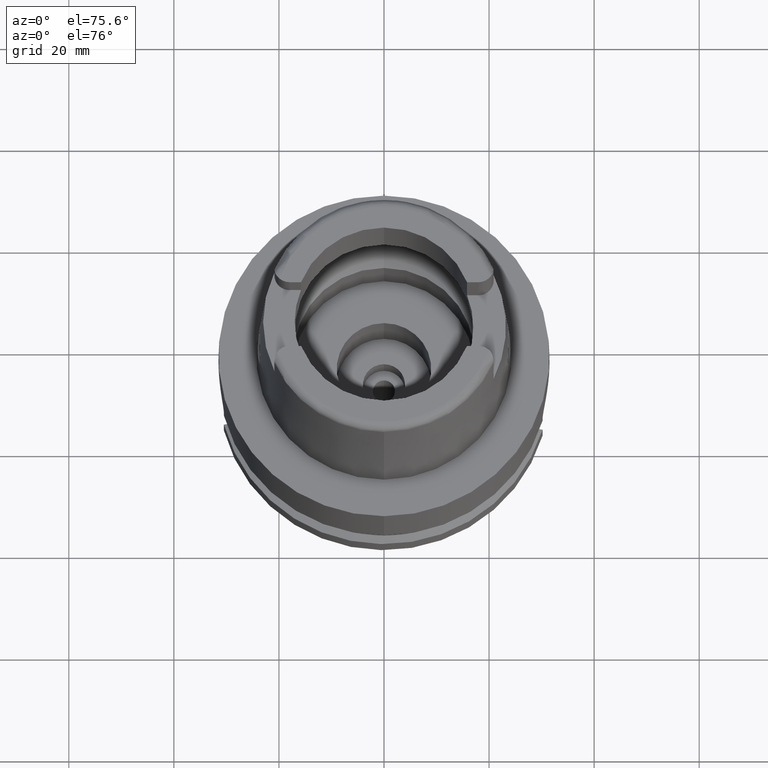
[diagram: clean part render]
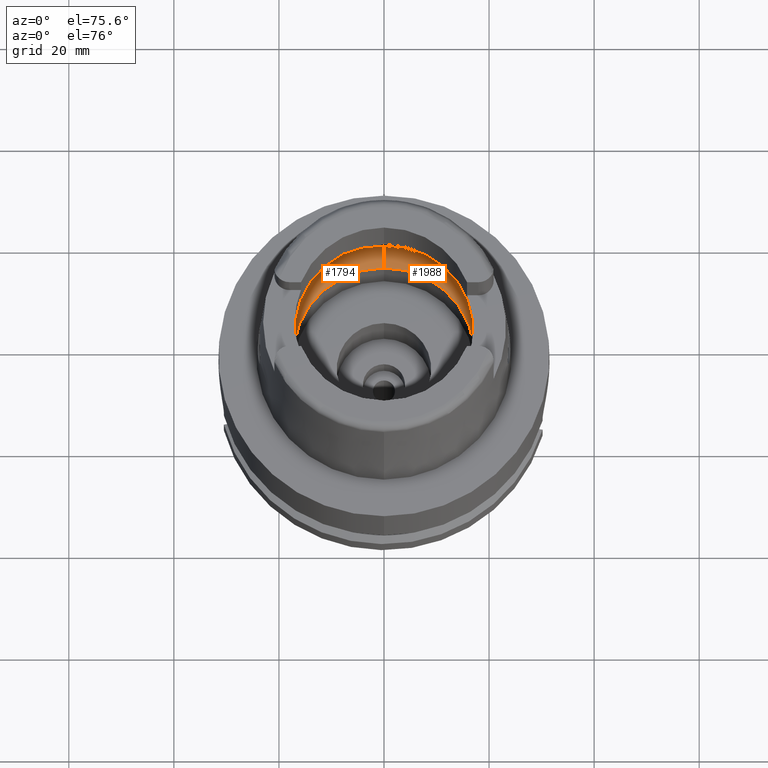
[diagram: same view with one multi-face feature highlighted, each face labeled with its STEP entity id]
A machine part, auxiliary view. The highlighted faces form ONE feature: a constant-radius fillet chain: 2 tangent blend faces with common blend radius 8 mm. The faces share edges in the B-rep.
Their STEP definitions:
[1] entity #1794 (Torus):
#205 = CARTESIAN_POINT ( 'NONE',  ( -19.93856738032333453, 0.8183990517498546113, 5.338642722792990014 ) ) ;
#215 = CARTESIAN_POINT ( 'NONE',  ( -19.90056784349247820, -1.871074272730828048, 5.748194928871746434 ) ) ;
#271 = CARTESIAN_POINT ( 'NONE',  ( -19.92467615132159864, -1.358120919786871328, 5.504564686247708671 ) ) ;
#588 = EDGE_CURVE ( 'NONE', #4641, #673, #3503, .T. ) ;
#622 = EDGE_CURVE ( 'NONE', #1286, #673, #2600, .T. ) ;
#633 = CARTESIAN_POINT ( 'NONE',  ( 0.0000000000000000000, 12.00000000000000000, 6.186348233825000875 ) ) ;
#660 = CARTESIAN_POINT ( 'NONE',  ( -19.92591906827002646, 1.321585501804108498, 5.490587994736724653 ) ) ;
#673 = VERTEX_POINT ( 'NONE', #1459 ) ;
#675 = CARTESIAN_POINT ( 'NONE',  ( -19.91819960699401193, -1.528790138807751164, 5.574827418276589341 ) ) ;
#679 = EDGE_CURVE ( 'NONE', #3279, #1286, #4270, .T. ) ;
#763 = ORIENTED_EDGE ( 'NONE', *, *, #622, .F. ) ;
#968 = EDGE_LOOP ( 'NONE', ( #1443, #3018, #1840, #1868, #763, #3403, #3286 ) ) ;
#1063 = CARTESIAN_POINT ( 'NONE',  ( -19.92607492902601862, 1.316891584251023373, 5.488826718528810211 ) ) ;
#1137 = CIRCLE ( 'NONE', #2579, 7.999999999999992895 ) ;
#1162 = AXIS2_PLACEMENT_3D ( 'NONE', #633, #3204, #1517 ) ;
#1257 = CARTESIAN_POINT ( 'NONE',  ( 0.0000000000000000000, 0.0000000000000000000, 6.186348233825000875 ) ) ;
#1280 = DIRECTION ( 'NONE',  ( 0.0000000000000000000, 0.0000000000000000000, -1.000000000000000000 ) ) ;
#1286 = VERTEX_POINT ( 'NONE', #1570 ) ;
#1420 = AXIS2_PLACEMENT_3D ( 'NONE', #4631, #4545, #3281 ) ;
#1443 = ORIENTED_EDGE ( 'NONE', *, *, #2815, .F. ) ;
#1459 = CARTESIAN_POINT ( 'NONE',  ( 0.0000000000000000000, 20.00000000000000000, 6.186348233825000875 ) ) ;
#1514 = AXIS2_PLACEMENT_3D ( 'NONE', #2761, #4498, #3615 ) ;
#1517 = DIRECTION ( 'NONE',  ( 0.0000000000000000000, 0.6562500000000006661, -0.7545435292281016393 ) ) ;
#1570 = CARTESIAN_POINT ( 'NONE',  ( -19.84575864665999845, 2.479085262489999941, 6.186348233825000875 ) ) ;
#1606 = VERTEX_POINT ( 'NONE', #4576 ) ;
#1620 = DIRECTION ( 'NONE',  ( 0.0000000000000000000, 1.000000000000000000, 0.0000000000000000000 ) ) ;
#1644 = B_SPLINE_CURVE_WITH_KNOTS ( 'NONE', 3,
 ( #4539, #3276, #4624, #215, #1927, #3653, #675, #5419, #2403, #271, #1984, #3706, #5001, #4572, #2438 ),
 .UNSPECIFIED., .F., .F.,
 ( 4, 2, 2, 1, 1, 1, 2, 2, 4 ),
 ( 0.0000000000000000000, 0.2500000000000051070, 0.3750000000000077716, 0.4375000000000091038, 0.4687500000000098255, 0.4843750000000101030, 0.4921875000000099920, 0.5000000000000098810, 1.000000000000000000 ),
 .UNSPECIFIED. ) ;
#1675 = FACE_OUTER_BOUND ( 'NONE', #968, .T. ) ;
#1794 = ADVANCED_FACE ( 'NONE', ( #1675 ), #4564, .F. ) ;
#1840 = ORIENTED_EDGE ( 'NONE', *, *, #2245, .F. ) ;
#1868 = ORIENTED_EDGE ( 'NONE', *, *, #588, .T. ) ;
#1888 = CARTESIAN_POINT ( 'NONE',  ( 0.0000000000000000000, 17.25000000000000000, 0.1500000000000999700 ) ) ;
#1912 = CARTESIAN_POINT ( 'NONE',  ( -19.93655272268687284, 0.9259470818481616572, 5.364515645286472179 ) ) ;
#1927 = CARTESIAN_POINT ( 'NONE',  ( -19.90654447560747542, -1.770008974173177263, 5.691881888190377659 ) ) ;
#1934 = CARTESIAN_POINT ( 'NONE',  ( -19.94501428475999916, 0.0000000000000000000, 5.250000000000000000 ) ) ;
#1937 = CARTESIAN_POINT ( 'NONE',  ( -19.90996177496825936, 1.795767083473500003, 5.670284047757667700 ) ) ;
#1959 = AXIS2_PLACEMENT_3D ( 'NONE', #1257, #4245, #1620 ) ;
#1984 = CARTESIAN_POINT ( 'NONE',  ( -19.92517785718085577, -1.343613127942956842, 5.498962406970089312 ) ) ;
#2141 = CIRCLE ( 'NONE', #1420, 17.25000000000000000 ) ;
#2212 = VERTEX_POINT ( 'NONE', #3203 ) ;
#2245 = EDGE_CURVE ( 'NONE', #4641, #2669, #2141, .T. ) ;
#2335 = CARTESIAN_POINT ( 'NONE',  ( -19.94501428475999916, 0.0000000000000000000, 5.250000000000000000 ) ) ;
#2403 = CARTESIAN_POINT ( 'NONE',  ( -19.92391559123418787, -1.379822842001579009, 5.513022806674898746 ) ) ;
#2438 = CARTESIAN_POINT ( 'NONE',  ( -19.94501428475999916, 0.0000000000000000000, 5.250000000000000000 ) ) ;
#2485 = DIRECTION ( 'NONE',  ( 0.0000000000000000000, -1.000000000000000000, 0.0000000000000000000 ) ) ;
#2579 = AXIS2_PLACEMENT_3D ( 'NONE', #5154, #3966, #4885 ) ;
#2600 = CIRCLE ( 'NONE', #1514, 20.00000000000001421 ) ;
#2669 = VERTEX_POINT ( 'NONE', #4018 ) ;
#2761 = CARTESIAN_POINT ( 'NONE',  ( 0.0000000000000000000, 0.0000000000000000000, 6.186348233825000875 ) ) ;
#2815 = EDGE_CURVE ( 'NONE', #1606, #2212, #3046, .T. ) ;
#2918 = CARTESIAN_POINT ( 'NONE',  ( -19.93292633894125032, 1.081457122334412047, 5.408919853931180910 ) ) ;
#3018 = ORIENTED_EDGE ( 'NONE', *, *, #4974, .F. ) ;
#3046 = CIRCLE ( 'NONE', #5121, 20.00000000000000000 ) ;
#3156 = CARTESIAN_POINT ( 'NONE',  ( -19.92840595086943978, 1.244192535819847123, 5.462252019519766577 ) ) ;
#3203 = CARTESIAN_POINT ( 'NONE',  ( -19.84575864665999845, -2.479085262491000030, 6.186348233825000875 ) ) ;
#3204 = DIRECTION ( 'NONE',  ( 1.000000000000000000, 0.0000000000000000000, 0.0000000000000000000 ) ) ;
#3276 = CARTESIAN_POINT ( 'NONE',  ( -19.86453968564131500, -2.328737885376345407, 6.053878405347992597 ) ) ;
#3279 = VERTEX_POINT ( 'NONE', #1934 ) ;
#3281 = DIRECTION ( 'NONE',  ( 0.0000000000000000000, 1.000000000000000000, 0.0000000000000000000 ) ) ;
#3286 = ORIENTED_EDGE ( 'NONE', *, *, #4081, .F. ) ;
#3403 = ORIENTED_EDGE ( 'NONE', *, *, #679, .F. ) ;
#3503 = CIRCLE ( 'NONE', #1162, 7.999999999999992895 ) ;
#3615 = DIRECTION ( 'NONE',  ( -0.9922879323327794543, 0.1239542631244973381, 0.0000000000000000000 ) ) ;
#3653 = CARTESIAN_POINT ( 'NONE',  ( -19.91448525756728927, -1.610510976265786987, 5.612925495665686881 ) ) ;
#3665 = CARTESIAN_POINT ( 'NONE',  ( -19.93096204774570523, 1.157762075076217867, 5.432521242667223582 ) ) ;
#3706 = CARTESIAN_POINT ( 'NONE',  ( -19.92547007504345302, -1.335031240339097369, 5.495683724100088874 ) ) ;
#3761 = CARTESIAN_POINT ( 'NONE',  ( -19.92647156474819425, 1.304855687908918371, 5.484336066840278079 ) ) ;
#3794 = CARTESIAN_POINT ( 'NONE',  ( -19.84575864665999845, 2.479085262489999941, 6.186348233825000875 ) ) ;
#3966 = DIRECTION ( 'NONE',  ( -1.000000000000000000, 0.0000000000000000000, 0.0000000000000000000 ) ) ;
#4018 = CARTESIAN_POINT ( 'NONE',  ( 0.0000000000000000000, -17.25000000000000000, 0.1500000000000999700 ) ) ;
#4063 = CARTESIAN_POINT ( 'NONE',  ( -19.94501428476000271, 0.2479290550754577327, 5.249999999999999112 ) ) ;
#4081 = EDGE_CURVE ( 'NONE', #2212, #3279, #1644, .T. ) ;
#4245 = DIRECTION ( 'NONE',  ( 0.0000000000000000000, 0.0000000000000000000, 1.000000000000000000 ) ) ;
#4270 = B_SPLINE_CURVE_WITH_KNOTS ( 'NONE', 3,
 ( #2335, #4063, #4525, #205, #1912, #2918, #3665, #3156, #4928, #3761, #1063, #660, #1937, #5476, #3794 ),
 .UNSPECIFIED., .F., .F.,
 ( 4, 2, 2, 1, 1, 1, 2, 2, 4 ),
 ( 0.0000000000000000000, 0.2500000000000002220, 0.3750000000000004441, 0.4375000000000003331, 0.4687500000000000555, 0.4843750000000001110, 0.4921875000000000555, 0.5000000000000000000, 1.000000000000000000 ),
 .UNSPECIFIED. ) ;
#4498 = DIRECTION ( 'NONE',  ( 0.0000000000000000000, 0.0000000000000000000, -1.000000000000000000 ) ) ;
#4525 = CARTESIAN_POINT ( 'NONE',  ( -19.94340255865082767, 0.4848947565524748260, 5.274596189388979894 ) ) ;
#4539 = CARTESIAN_POINT ( 'NONE',  ( -19.84575864665999845, -2.479085262491000030, 6.186348233825000875 ) ) ;
#4545 = DIRECTION ( 'NONE',  ( 0.0000000000000000000, 0.0000000000000000000, 1.000000000000000000 ) ) ;
#4564 = TOROIDAL_SURFACE ( 'NONE', #1959, 12.00000000000000000, 8.000000000000000000 ) ;
#4572 = CARTESIAN_POINT ( 'NONE',  ( -19.94501428475999560, -0.4960423020627297008, 5.249999999999995559 ) ) ;
#4576 = CARTESIAN_POINT ( 'NONE',  ( 0.0000000000000000000, -20.00000000000000000, 6.186348233825000875 ) ) ;
#4624 = CARTESIAN_POINT ( 'NONE',  ( -19.88058961472209774, -2.158414018199903417, 5.925204145833316893 ) ) ;
#4631 = CARTESIAN_POINT ( 'NONE',  ( 0.0000000000000000000, 0.0000000000000000000, 0.1500000000000999700 ) ) ;
#4641 = VERTEX_POINT ( 'NONE', #1888 ) ;
#4885 = DIRECTION ( 'NONE',  ( 0.0000000000000000000, -0.6562500000000006661, -0.7545435292281016393 ) ) ;
#4928 = CARTESIAN_POINT ( 'NONE',  ( -19.92706179647761999, 1.286754988679454703, 5.477635449958629721 ) ) ;
#4974 = EDGE_CURVE ( 'NONE', #2669, #1606, #1137, .T. ) ;
#5001 = CARTESIAN_POINT ( 'NONE',  ( -19.93856671042052398, -0.9459665778997381480, 5.348222674928019060 ) ) ;
#5121 = AXIS2_PLACEMENT_3D ( 'NONE', #5522, #1280, #2485 ) ;
#5154 = CARTESIAN_POINT ( 'NONE',  ( 0.0000000000000000000, -12.00000000000000000, 6.186348233825000875 ) ) ;
#5419 = CARTESIAN_POINT ( 'NONE',  ( -19.92208494194046509, -1.430041077684033990, 5.533135808937241329 ) ) ;
#5476 = CARTESIAN_POINT ( 'NONE',  ( -19.88332346670492257, 2.178368557158611996, 5.921389235935947681 ) ) ;
#5522 = CARTESIAN_POINT ( 'NONE',  ( 0.0000000000000000000, 0.0000000000000000000, 6.186348233825000875 ) ) ;
[2] entity #1988 (Torus):
#22 = CARTESIAN_POINT ( 'NONE',  ( 19.92467869001661995, 1.357961439187409525, 5.504502721927527986 ) ) ;
#54 = CARTESIAN_POINT ( 'NONE',  ( 19.94501428475999916, 0.0000000000000000000, 5.250000000000000000 ) ) ;
#170 = B_SPLINE_CURVE_WITH_KNOTS ( 'NONE', 3,
 ( #2067, #5556, #5192, #4770, #5108, #4272, #1672, #1647, #2940, #22, #1307, #3362, #1336, #5500, #4331 ),
 .UNSPECIFIED., .F., .F.,
 ( 4, 2, 2, 1, 1, 1, 2, 2, 4 ),
 ( 0.0000000000000000000, 0.2500000000000033862, 0.3750000000000049405, 0.4375000000000056621, 0.4687500000000057176, 0.4843750000000056621, 0.4921875000000054956, 0.5000000000000053291, 1.000000000000000000 ),
 .UNSPECIFIED. ) ;
#260 = AXIS2_PLACEMENT_3D ( 'NONE', #5204, #3035, #3008 ) ;
#313 = EDGE_LOOP ( 'NONE', ( #4241, #3674, #3777, #5194, #879, #4046, #2523 ) ) ;
#464 = CARTESIAN_POINT ( 'NONE',  ( 19.92840411800285594, -1.244366584479167814, 5.462313247185328180 ) ) ;
#513 = AXIS2_PLACEMENT_3D ( 'NONE', #4894, #4869, #921 ) ;
#588 = EDGE_CURVE ( 'NONE', #4641, #673, #3503, .T. ) ;
#633 = CARTESIAN_POINT ( 'NONE',  ( 0.0000000000000000000, 12.00000000000000000, 6.186348233825000875 ) ) ;
#673 = VERTEX_POINT ( 'NONE', #1459 ) ;
#779 = CIRCLE ( 'NONE', #513, 20.00000000000001421 ) ;
#854 = CARTESIAN_POINT ( 'NONE',  ( 19.93292500493674524, -1.081634238850528451, 5.408973163817647034 ) ) ;
#879 = ORIENTED_EDGE ( 'NONE', *, *, #4974, .T. ) ;
#912 = CARTESIAN_POINT ( 'NONE',  ( 19.93856666885426776, -0.8185636124059638696, 5.338679045133562617 ) ) ;
#921 = DIRECTION ( 'NONE',  ( 0.9922879323327794543, -0.1239542631244973381, 0.0000000000000000000 ) ) ;
#1137 = CIRCLE ( 'NONE', #2579, 7.999999999999992895 ) ;
#1162 = AXIS2_PLACEMENT_3D ( 'NONE', #633, #3204, #1517 ) ;
#1307 = CARTESIAN_POINT ( 'NONE',  ( 19.92518041982365418, 1.343450277255565872, 5.498899909475031045 ) ) ;
#1336 = CARTESIAN_POINT ( 'NONE',  ( 19.93856757259323231, 0.9457801821284733679, 5.348172806034195759 ) ) ;
#1389 = DIRECTION ( 'NONE',  ( 0.0000000000000000000, 0.0000000000000000000, -1.000000000000000000 ) ) ;
#1426 = CIRCLE ( 'NONE', #260, 17.25000000000000000 ) ;
#1431 = FACE_OUTER_BOUND ( 'NONE', #313, .T. ) ;
#1459 = CARTESIAN_POINT ( 'NONE',  ( 0.0000000000000000000, 20.00000000000000000, 6.186348233825000875 ) ) ;
#1517 = DIRECTION ( 'NONE',  ( 0.0000000000000000000, 0.6562500000000006661, -0.7545435292281016393 ) ) ;
#1606 = VERTEX_POINT ( 'NONE', #4576 ) ;
#1647 = CARTESIAN_POINT ( 'NONE',  ( 19.92208736014775994, 1.429898011590186924, 5.533076699460339754 ) ) ;
#1672 = CARTESIAN_POINT ( 'NONE',  ( 19.91820185418519884, 1.528668694906667236, 5.574772838317966439 ) ) ;
#1681 = CARTESIAN_POINT ( 'NONE',  ( 19.92607283891191727, -1.317061137141596561, 5.488890315884850324 ) ) ;
#1760 = CARTESIAN_POINT ( 'NONE',  ( 19.88332301270218849, -2.178372191595286722, 5.921392438207989883 ) ) ;
#1779 = AXIS2_PLACEMENT_3D ( 'NONE', #2677, #5236, #3581 ) ;
#1877 = VERTEX_POINT ( 'NONE', #4615 ) ;
#1888 = CARTESIAN_POINT ( 'NONE',  ( 0.0000000000000000000, 17.25000000000000000, 0.1500000000000999700 ) ) ;
#1988 = ADVANCED_FACE ( 'NONE', ( #1431 ), #5462, .F. ) ;
#2067 = CARTESIAN_POINT ( 'NONE',  ( 19.84575864665999845, 2.479085262491000030, 6.186348233825000875 ) ) ;
#2091 = EDGE_CURVE ( 'NONE', #3338, #1606, #779, .T. ) ;
#2099 = VERTEX_POINT ( 'NONE', #3554 ) ;
#2262 = CARTESIAN_POINT ( 'NONE',  ( 0.0000000000000000000, 0.0000000000000000000, 6.186348233825000875 ) ) ;
#2523 = ORIENTED_EDGE ( 'NONE', *, *, #3622, .F. ) ;
#2579 = AXIS2_PLACEMENT_3D ( 'NONE', #5154, #3966, #4885 ) ;
#2582 = CARTESIAN_POINT ( 'NONE',  ( 19.92591691872320681, -1.321755966737424792, 5.490652197696729075 ) ) ;
#2669 = VERTEX_POINT ( 'NONE', #4018 ) ;
#2677 = CARTESIAN_POINT ( 'NONE',  ( 0.0000000000000000000, 0.0000000000000000000, 6.186348233825000875 ) ) ;
#2940 = CARTESIAN_POINT ( 'NONE',  ( 19.92391809393505397, 1.379668374353000937, 5.512961660982391265 ) ) ;
#2977 = CARTESIAN_POINT ( 'NONE',  ( 19.92646951840612246, -1.305026090026948804, 5.484399317726082579 ) ) ;
#3008 = DIRECTION ( 'NONE',  ( 0.0000000000000000000, -1.000000000000000000, 0.0000000000000000000 ) ) ;
#3030 = CARTESIAN_POINT ( 'NONE',  ( 19.90996060949646207, -1.795819319521763990, 5.670329520825307057 ) ) ;
#3035 = DIRECTION ( 'NONE',  ( 0.0000000000000000000, 0.0000000000000000000, 1.000000000000000000 ) ) ;
#3059 = CARTESIAN_POINT ( 'NONE',  ( 19.84575864665999845, -2.479085262491000030, 6.186348233825000875 ) ) ;
#3096 = AXIS2_PLACEMENT_3D ( 'NONE', #2262, #1389, #4433 ) ;
#3161 = EDGE_CURVE ( 'NONE', #2669, #4641, #1426, .T. ) ;
#3204 = DIRECTION ( 'NONE',  ( 1.000000000000000000, 0.0000000000000000000, 0.0000000000000000000 ) ) ;
#3338 = VERTEX_POINT ( 'NONE', #5288 ) ;
#3362 = CARTESIAN_POINT ( 'NONE',  ( 19.92547268850448816, 1.334865291962832767, 5.495620507227335416 ) ) ;
#3369 = CARTESIAN_POINT ( 'NONE',  ( 19.94340238078356720, -0.4850176595367738930, 5.274610361541468784 ) ) ;
#3491 = CARTESIAN_POINT ( 'NONE',  ( 19.94501428476000271, -0.2480012822880987844, 5.249999999999999112 ) ) ;
#3503 = CIRCLE ( 'NONE', #1162, 7.999999999999992895 ) ;
#3554 = CARTESIAN_POINT ( 'NONE',  ( 19.94501428475999916, 0.0000000000000000000, 5.250000000000000000 ) ) ;
#3581 = DIRECTION ( 'NONE',  ( 0.0000000000000000000, 1.000000000000000000, 0.0000000000000000000 ) ) ;
#3622 = EDGE_CURVE ( 'NONE', #2099, #3338, #4484, .T. ) ;
#3674 = ORIENTED_EDGE ( 'NONE', *, *, #5551, .F. ) ;
#3777 = ORIENTED_EDGE ( 'NONE', *, *, #588, .F. ) ;
#3883 = CARTESIAN_POINT ( 'NONE',  ( 19.92705981527248937, -1.286926606873724177, 5.477698152406411225 ) ) ;
#3966 = DIRECTION ( 'NONE',  ( -1.000000000000000000, 0.0000000000000000000, 0.0000000000000000000 ) ) ;
#4018 = CARTESIAN_POINT ( 'NONE',  ( 0.0000000000000000000, -17.25000000000000000, 0.1500000000000999700 ) ) ;
#4046 = ORIENTED_EDGE ( 'NONE', *, *, #2091, .F. ) ;
#4156 = EDGE_CURVE ( 'NONE', #1877, #2099, #170, .T. ) ;
#4241 = ORIENTED_EDGE ( 'NONE', *, *, #4156, .F. ) ;
#4272 = CARTESIAN_POINT ( 'NONE',  ( 19.91448735469504427, 1.610406046188481932, 5.612875421313382240 ) ) ;
#4331 = CARTESIAN_POINT ( 'NONE',  ( 19.94501428475999916, 0.0000000000000000000, 5.250000000000000000 ) ) ;
#4433 = DIRECTION ( 'NONE',  ( 0.0000000000000000000, 1.000000000000000000, 0.0000000000000000000 ) ) ;
#4484 = B_SPLINE_CURVE_WITH_KNOTS ( 'NONE', 3,
 ( #54, #3491, #3369, #912, #5197, #854, #5532, #464, #3883, #2977, #1681, #2582, #3030, #1760, #3059 ),
 .UNSPECIFIED., .F., .F.,
 ( 4, 2, 2, 1, 1, 1, 2, 2, 4 ),
 ( 0.0000000000000000000, 0.2499999999999987788, 0.3749999999999982792, 0.4374999999999980571, 0.4687499999999978906, 0.4843749999999975020, 0.4921874999999975575, 0.4999999999999975575, 1.000000000000000000 ),
 .UNSPECIFIED. ) ;
#4576 = CARTESIAN_POINT ( 'NONE',  ( 0.0000000000000000000, -20.00000000000000000, 6.186348233825000875 ) ) ;
#4615 = CARTESIAN_POINT ( 'NONE',  ( 19.84575864665999845, 2.479085262491000030, 6.186348233825000875 ) ) ;
#4641 = VERTEX_POINT ( 'NONE', #1888 ) ;
#4770 = CARTESIAN_POINT ( 'NONE',  ( 19.90056942649606597, 1.871016442818389525, 5.748161141865908874 ) ) ;
#4869 = DIRECTION ( 'NONE',  ( 0.0000000000000000000, 0.0000000000000000000, -1.000000000000000000 ) ) ;
#4885 = DIRECTION ( 'NONE',  ( 0.0000000000000000000, -0.6562500000000006661, -0.7545435292281016393 ) ) ;
#4894 = CARTESIAN_POINT ( 'NONE',  ( 0.0000000000000000000, 0.0000000000000000000, 6.186348233825000875 ) ) ;
#4974 = EDGE_CURVE ( 'NONE', #2669, #1606, #1137, .T. ) ;
#5108 = CARTESIAN_POINT ( 'NONE',  ( 19.90654626797081761, 1.769934426146181128, 5.691841251131339874 ) ) ;
#5154 = CARTESIAN_POINT ( 'NONE',  ( 0.0000000000000000000, -12.00000000000000000, 6.186348233825000875 ) ) ;
#5192 = CARTESIAN_POINT ( 'NONE',  ( 19.88059055109615159, 2.158396495719459462, 5.925189677144884648 ) ) ;
#5194 = ORIENTED_EDGE ( 'NONE', *, *, #3161, .F. ) ;
#5197 = CARTESIAN_POINT ( 'NONE',  ( 19.93655178888372248, -0.9261198900591437466, 5.364559530321087344 ) ) ;
#5204 = CARTESIAN_POINT ( 'NONE',  ( 0.0000000000000000000, 0.0000000000000000000, 0.1500000000000999700 ) ) ;
#5236 = DIRECTION ( 'NONE',  ( 0.0000000000000000000, 0.0000000000000000000, 1.000000000000000000 ) ) ;
#5245 = CIRCLE ( 'NONE', #3096, 20.00000000000000000 ) ;
#5288 = CARTESIAN_POINT ( 'NONE',  ( 19.84575864665999845, -2.479085262491000030, 6.186348233825000875 ) ) ;
#5462 = TOROIDAL_SURFACE ( 'NONE', #1779, 12.00000000000000000, 8.000000000000000000 ) ;
#5500 = CARTESIAN_POINT ( 'NONE',  ( 19.94501428475999560, 0.4959095983523816309, 5.249999999999999112 ) ) ;
#5532 = CARTESIAN_POINT ( 'NONE',  ( 19.93096049696546856, -1.157939335591919860, 5.432578789541300246 ) ) ;
#5551 = EDGE_CURVE ( 'NONE', #673, #1877, #5245, .T. ) ;
#5556 = CARTESIAN_POINT ( 'NONE',  ( 19.86454016619522989, 2.328734038445912979, 6.053875015849456531 ) ) ;